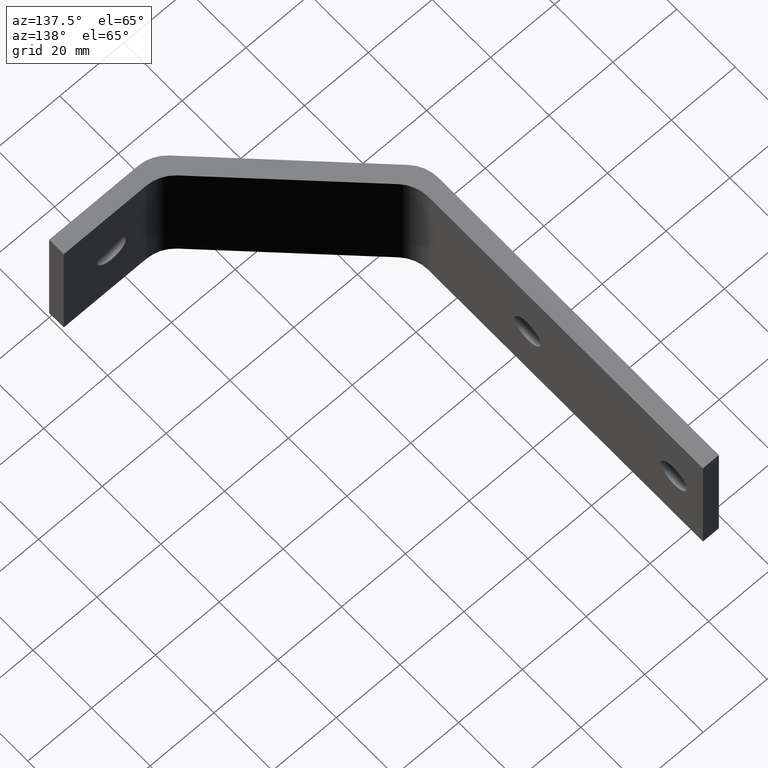
[diagram: clean part render]
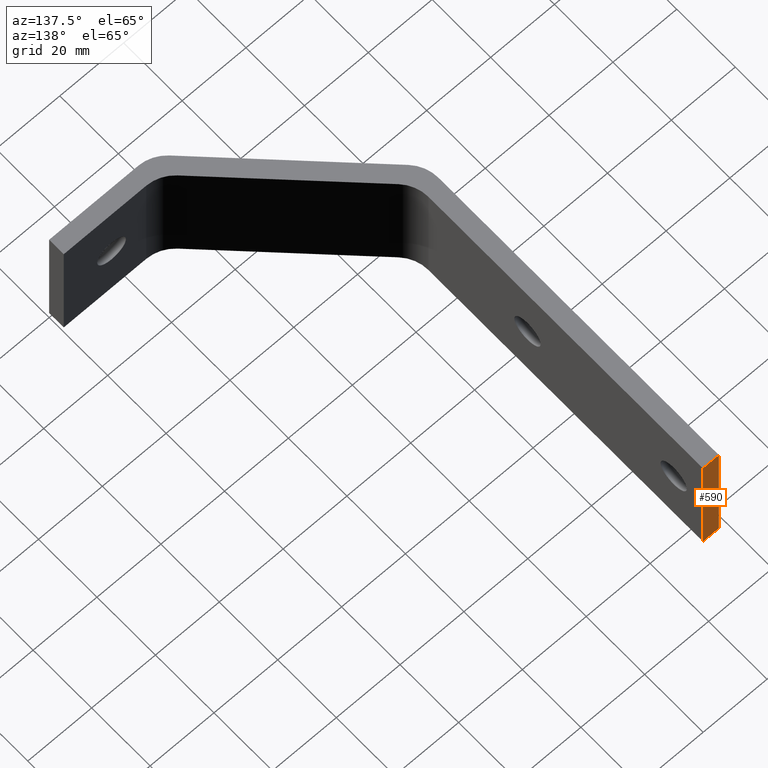
[diagram: same view with one face highlighted and labeled with its STEP entity id]
A machine part, auxiliary view. The second image highlights one B-rep face of the part: STEP entity #590.
In plain terms, the highlighted planar face has unit normal (0, -1, 0).
Its self-contained STEP definition (entity closure, byte-faithful):
#10 = VERTEX_POINT ( 'NONE', #548 ) ;
#15 = VERTEX_POINT ( 'NONE', #553 ) ;
#17 = VERTEX_POINT ( 'NONE', #555 ) ;
#110 = AXIS2_PLACEMENT_3D ( 'NONE', #196, #197, #198 ) ;
#144 = EDGE_CURVE ( 'NONE', #533, #10, #348, .T. ) ;
#146 = EDGE_CURVE ( 'NONE', #17, #10, #342, .T. ) ;
#156 = EDGE_CURVE ( 'NONE', #15, #533, #325, .T. ) ;
#160 = EDGE_CURVE ( 'NONE', #15, #17, #315, .T. ) ;
#168 = CARTESIAN_POINT ( 'NONE',  ( -77.00000000000000000, 145.0000000000000000, 20.00000000000000000 ) ) ;
#169 = DIRECTION ( 'NONE',  ( 0.0000000000000000000, 0.0000000000000000000, -1.000000000000000000 ) ) ;
#176 = CARTESIAN_POINT ( 'NONE',  ( -38.50000000000000000, 145.0000000000000000, 40.00000000000000000 ) ) ;
#177 = DIRECTION ( 'NONE',  ( 1.000000000000000000, -0.0000000000000000000, -0.0000000000000000000 ) ) ;
#186 = CARTESIAN_POINT ( 'NONE',  ( -77.00000000000000000, 145.0000000000000000, 0.0000000000000000000 ) ) ;
#195 = PLANE ( 'NONE',  #110 ) ;
#196 = CARTESIAN_POINT ( 'NONE',  ( -77.00000000000000000, 145.0000000000000000, 40.00000000000000000 ) ) ;
#197 = DIRECTION ( 'NONE',  ( 0.0000000000000000000, -1.000000000000000000, 0.0000000000000000000 ) ) ;
#198 = DIRECTION ( 'NONE',  ( 0.0000000000000000000, 0.0000000000000000000, -1.000000000000000000 ) ) ;
#305 = FACE_OUTER_BOUND ( 'NONE', #525, .T. ) ;
#314 = VECTOR ( 'NONE', #177, 1000.000000000000000 ) ;
#315 = LINE ( 'NONE', #176, #314 ) ;
#324 = VECTOR ( 'NONE', #169, 1000.000000000000000 ) ;
#325 = LINE ( 'NONE', #168, #324 ) ;
#341 = VECTOR ( 'NONE', #714, 1000.000000000000000 ) ;
#342 = LINE ( 'NONE', #713, #341 ) ;
#346 = VECTOR ( 'NONE', #710, 1000.000000000000000 ) ;
#348 = LINE ( 'NONE', #709, #346 ) ;
#448 = ORIENTED_EDGE ( 'NONE', *, *, #160, .T. ) ;
#455 = ORIENTED_EDGE ( 'NONE', *, *, #156, .F. ) ;
#469 = ORIENTED_EDGE ( 'NONE', *, *, #146, .T. ) ;
#520 = ORIENTED_EDGE ( 'NONE', *, *, #144, .F. ) ;
#525 = EDGE_LOOP ( 'NONE', ( #455, #448, #469, #520 ) ) ;
#533 = VERTEX_POINT ( 'NONE', #186 ) ;
#548 = CARTESIAN_POINT ( 'NONE',  ( -71.99999999666667300, 145.0000000000000000, 0.0000000000000000000 ) ) ;
#553 = CARTESIAN_POINT ( 'NONE',  ( -77.00000000000000000, 145.0000000000000000, 40.00000000000000000 ) ) ;
#555 = CARTESIAN_POINT ( 'NONE',  ( -71.99999999750001200, 145.0000000000000000, 40.00000000000000700 ) ) ;
#590 = ADVANCED_FACE ( 'NONE', ( #305 ), #195, .F. ) ;
#709 = CARTESIAN_POINT ( 'NONE',  ( -38.50000000000000000, 145.0000000000000000, 0.0000000000000000000 ) ) ;
#710 = DIRECTION ( 'NONE',  ( 1.000000000000000000, -0.0000000000000000000, -0.0000000000000000000 ) ) ;
#713 = CARTESIAN_POINT ( 'NONE',  ( -72.00000000000001400, 145.0000000000000000, 20.00000000000000000 ) ) ;
#714 = DIRECTION ( 'NONE',  ( -0.0000000000000000000, -0.0000000000000000000, -1.000000000000000000 ) ) ;